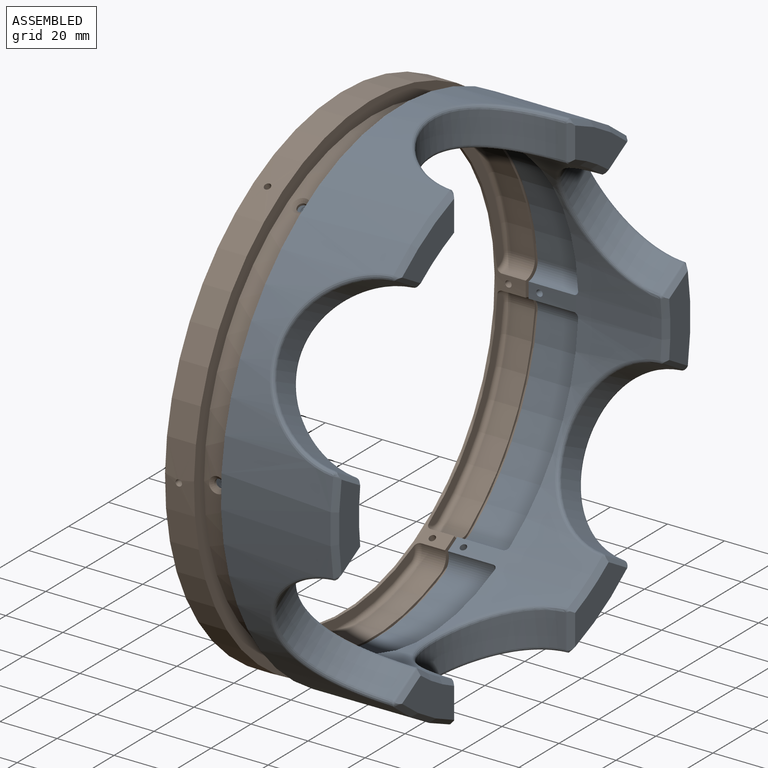
[diagram: assembled view]
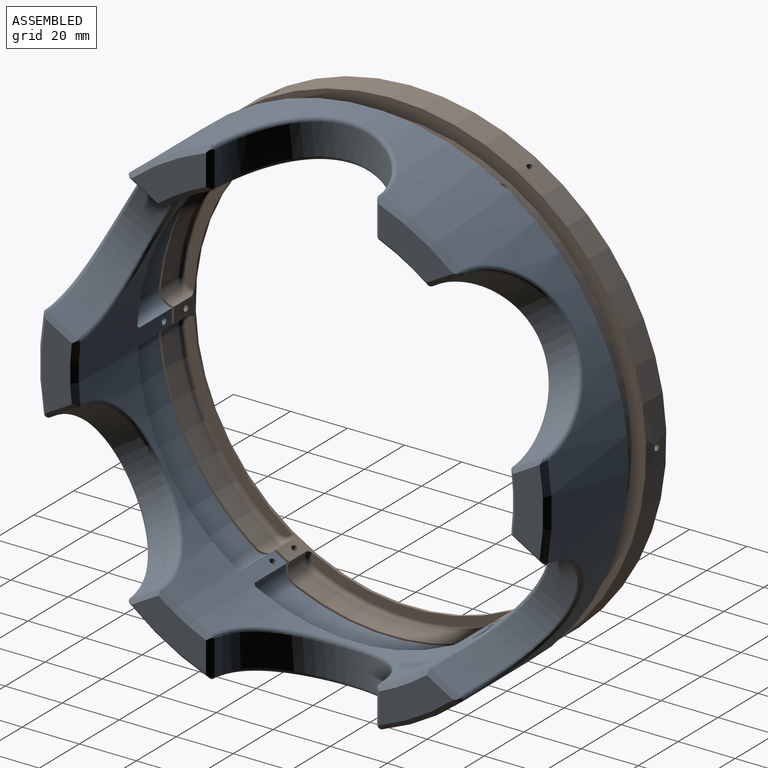
[diagram: assembled view, second angle]
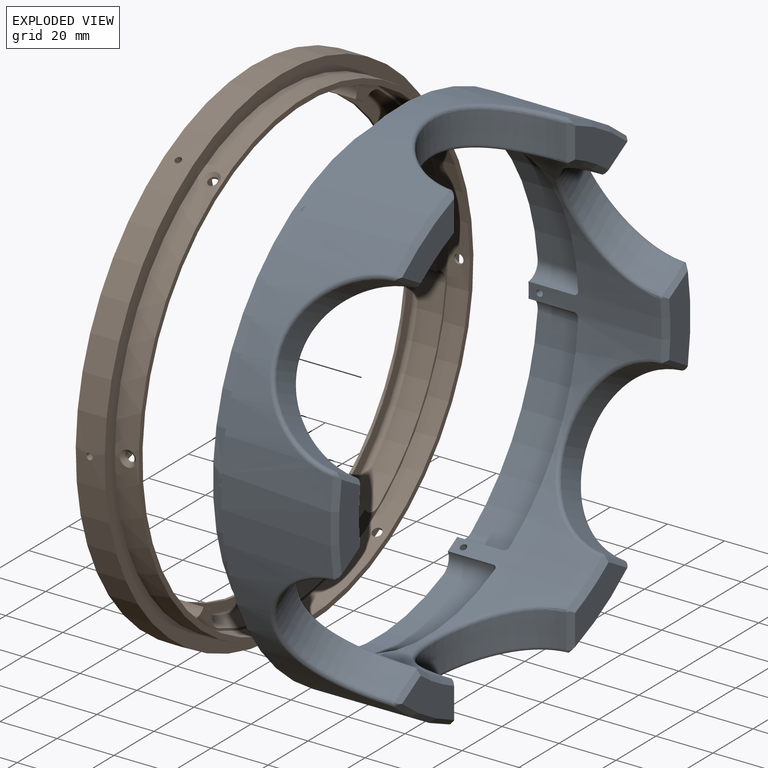
[diagram: exploded view]
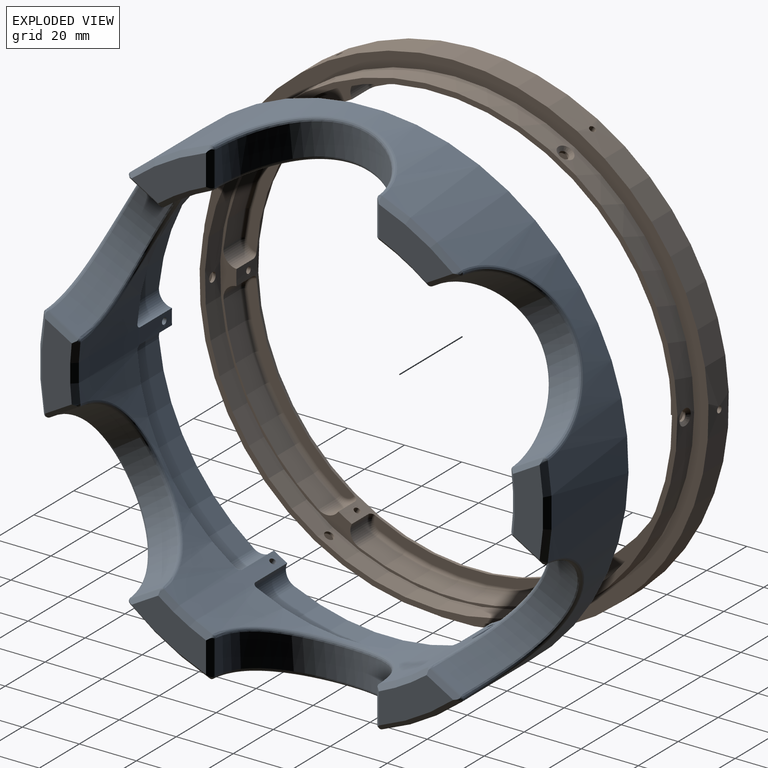
[diagram: exploded view, second angle]
ASSEMBLY  parts=2 mates=3
PART A: 169 faces, bbox 52x182.6x180.4 mm
  f0: plane 30.15x10.64mm, normal (1,0,0), area 249.5mm2, adj f1,f166,f167,f168
  f1: plane 10.94x7.13mm, normal (0.73,0.34,0.59), area 23.1mm2, adj f0,f2,f164,f165,f166,f168
  f2: bspline ~4.41x4.23mm, area 2.3mm2, adj f1,f3,f163,f164,f168
  f3: bspline ~52.45x31.19mm, area 194.8mm2, adj f2,f4,f161,f162,f163,f168
  f4: cone r=89.79mm half-angle=45deg, axis (-1,0,0), area 79.7mm2, adj f3,f5,f157,f158,f159,f160,f161,f162
  f5: plane 26.11x20.46mm, normal (1,0,0), area 249.5mm2, adj f4,f6,f157,f160
  f6: cone r=77.98mm half-angle=45deg, axis (1,0,0), area 50.1mm2, adj f5,f7,f154,f155,f157,f160
  f7: cylinder r=76.2mm len=152.4mm, axis (-1,0,0), area 14537.6mm2, adj f6,f8,f37,f38,f39,f40,f41,f42
  f8: cylinder r=1.52mm len=3.05mm, axis (0,1,0), area 0mm2, adj f7,f9
  f9: plane 3.05x3.05mm, normal (0,-1,0), area 3.3mm2, adj f8,f10,f37
  f10: cylinder r=1.13mm len=5.56mm, axis (0,-1,0), area 39.5mm2, adj f9,f11
  f11: plane 3.05x3.05mm, normal (0,1,0), area 3.3mm2, adj f10,f12
  f12: cylinder r=1.52mm len=3.05mm, axis (0,1,0), area 1.1mm2, adj f11,f13
  f13: cylinder r=81.89mm len=163.78mm, axis (-1,0,0), area 3904.2mm2, adj f12,f14,f18,f22,f26,f30,f34,f141
  f14: cylinder r=1.52mm len=3.05mm, axis (0,-1,0), area 1.1mm2, adj f13,f15
  f15: plane 3.05x3.05mm, normal (0,-1,0), area 3.3mm2, adj f14,f16
  f16: cylinder r=1.13mm len=5.56mm, axis (0,1,0), area 39.5mm2, adj f15,f17
  f17: plane 3.05x3.05mm, normal (0,1,0), area 3.3mm2, adj f16,f42,f43
  f18: cylinder r=1.52mm len=3.05mm, axis (0,-0.5,0.87), area 1.1mm2, adj f13,f19
  f19: plane 3.05x2.64mm, normal (0,-0.5,0.87), area 3.3mm2, adj f18,f20
  f20: cylinder r=1.13mm len=5.94mm, axis (0,0.5,-0.87), area 39.5mm2, adj f19,f21
  f21: plane 3.87x3.46mm, normal (0,0.5,-0.87), area 3.3mm2, adj f20,f40,f41
  f22: cylinder r=1.52mm len=3.05mm, axis (0,0.5,0.87), area 1.1mm2, adj f13,f23
  f23: plane 3.05x2.64mm, normal (0,0.5,0.87), area 3.3mm2, adj f22,f24
  f24: cylinder r=1.13mm len=5.94mm, axis (0,-0.5,-0.87), area 39.5mm2, adj f23,f25
  f25: plane 3.05x2.64mm, normal (0,-0.5,-0.87), area 3.3mm2, adj f24,f38,f39
  f26: cylinder r=1.52mm len=3.05mm, axis (0,0.5,-0.87), area 1.1mm2, adj f13,f27
  f27: plane 3.05x2.64mm, normal (0,0.5,-0.87), area 3.3mm2, adj f26,f28
  f28: cylinder r=1.13mm len=5.94mm, axis (0,-0.5,0.87), area 39.5mm2, adj f27,f29
  f29: plane 3.87x3.46mm, normal (0,-0.5,0.87), area 3.3mm2, adj f28,f46,f47
  f30: cylinder r=1.52mm len=3.05mm, axis (0,-0.5,-0.87), area 1.1mm2, adj f13,f31
  f31: plane 3.05x2.64mm, normal (0,-0.5,-0.87), area 3.3mm2, adj f30,f32
  f32: cylinder r=1.13mm len=5.94mm, axis (0,0.5,0.87), area 39.5mm2, adj f31,f33
  f33: plane 3.05x2.64mm, normal (0,0.5,0.87), area 3.3mm2, adj f32,f44,f45
  f34: plane 167.64x167.64mm, normal (-1,0,0), area 1005mm2, adj f13,f35
  f35: cylinder r=83.82mm len=167.64mm, axis (-1,0,0), area 334.4mm2, adj f34,f36
  f36: plane 179.58x179.58mm, normal (-1,0,0), area 3255.5mm2, adj f35,f162
  f37: cylinder r=1.52mm len=3.05mm, axis (0,1,0), area 0mm2, adj f7,f9
  f38: cylinder r=1.52mm len=3.05mm, axis (0,0.5,0.87), area 0mm2, adj f7,f25
  f39: cylinder r=1.52mm len=3.05mm, axis (0,0.5,0.87), area 0mm2, adj f7,f25
  f40: cylinder r=1.52mm len=3.05mm, axis (0,-0.5,0.87), area 0mm2, adj f7,f21
  f41: cylinder r=1.52mm len=3.05mm, axis (0,-0.5,0.87), area 0mm2, adj f7,f21
  f42: cylinder r=1.52mm len=3.05mm, axis (0,-1,0), area 0mm2, adj f7,f17
  f43: cylinder r=1.52mm len=3.05mm, axis (0,-1,0), area 0mm2, adj f7,f17
  f44: cylinder r=1.52mm len=3.05mm, axis (0,-0.5,-0.87), area 0mm2, adj f7,f33
  f45: cylinder r=1.52mm len=3.05mm, axis (0,-0.5,-0.87), area 0mm2, adj f7,f33
  f46: cylinder r=1.52mm len=3.05mm, axis (0,0.5,-0.87), area 0mm2, adj f7,f29
  f47: cylinder r=1.52mm len=3.05mm, axis (0,0.5,-0.87), area 0mm2, adj f7,f29
  f48: cone r=77.98mm half-angle=45deg, axis (1,0,0), area 50.1mm2, adj f7,f49,f91,f92,f93,f153
  f49: plane 10.95x6.92mm, normal (0.73,0.34,0.59), area 23.1mm2, adj f48,f50,f73,f90,f92,f93
  f50: bspline ~4.23x3.92mm, area 2.3mm2, adj f49,f51,f72,f73,f90
  f51: cylinder r=28.57mm len=57.85mm, axis (0,0.87,-0.5), area 975.4mm2, adj f50,f52,f71,f72,f90,f93,f94,f95
  f52: bspline ~4.41x4.23mm, area 2.3mm2, adj f51,f53,f70,f71,f72
  f53: plane 10.94x7.13mm, normal (0.73,-0.34,-0.59), area 23.1mm2, adj f52,f54,f70,f71,f95,f96
  f54: plane 30.15x10.64mm, normal (1,0,0), area 249.5mm2, adj f53,f55,f70,f96
  f55: plane 10.94x7.13mm, normal (0.73,-0.34,0.59), area 23.1mm2, adj f54,f56,f69,f70,f96,f97
  f56: bspline ~5.65x5.54mm, area 2.3mm2, adj f55,f57,f68,f69,f70
  f57: cylinder r=28.57mm len=57.85mm, axis (0,-0.87,-0.5), area 975.5mm2, adj f56,f58,f67,f68,f69,f97,f98,f99
  f58: bspline ~4.23x3.92mm, area 2.3mm2, adj f57,f59,f66,f67,f68
  f59: plane 10.95x6.92mm, normal (0.73,0.34,-0.59), area 23.1mm2, adj f58,f60,f66,f67,f99,f100
  f60: plane 26.11x20.46mm, normal (1,0,0), area 249.5mm2, adj f59,f61,f66,f100
  f61: plane 12.48x1.42mm, normal (0.73,-0.69,0), area 23.1mm2, adj f60,f62,f65,f66,f100,f101
  f62: bspline ~5.86x5.54mm, area 2.3mm2, adj f61,f63,f65,f66,f158
  f63: cylinder r=28.57mm len=56.99mm, axis (0,0,1), area 975.4mm2, adj f62,f64,f65,f101,f145,f154,f158,f159
  f64: cylinder r=1.27mm len=12.42mm, axis (0,0,1), area 11.3mm2, adj f63,f154,f159,f160
  f65: cylinder r=1.27mm len=12.42mm, axis (0,0,1), area 11.3mm2, adj f61,f62,f63,f101
  f66: cone r=89.79mm half-angle=45deg, axis (-1,0,0), area 79.7mm2, adj f58,f59,f60,f61,f62,f68,f158,f162
  f67: cylinder r=1.27mm len=10.95mm, axis (0,-0.87,-0.5), area 11.3mm2, adj f57,f58,f59,f99
  f68: bspline ~52.44x31.19mm, area 194.8mm2, adj f56,f57,f58,f66,f70,f162
  f69: cylinder r=1.27mm len=10.95mm, axis (0,-0.87,-0.5), area 11.3mm2, adj f55,f56,f57,f97
  f70: cone r=89.79mm half-angle=45deg, axis (-1,0,0), area 79.7mm2, adj f52,f53,f54,f55,f56,f68,f72,f162
  f71: cylinder r=1.27mm len=10.95mm, axis (0,0.87,-0.5), area 11.3mm2, adj f51,f52,f53,f95
  f72: bspline ~52.45x31.19mm, area 194.8mm2, adj f50,f51,f52,f70,f73,f162
  f73: cone r=89.79mm half-angle=45deg, axis (-1,0,0), area 79.7mm2, adj f49,f50,f72,f74,f89,f91,f92,f162
  f74: bspline ~60.56x31.19mm, area 194.8mm2, adj f73,f75,f86,f87,f89,f162
  f75: cone r=89.79mm half-angle=45deg, axis (-1,0,0), area 79.7mm2, adj f74,f76,f81,f82,f83,f84,f86,f162
  f76: bspline ~52.44x31.19mm, area 194.8mm2, adj f75,f77,f79,f81,f162,f168
  f77: bspline ~5.65x5.54mm, area 2.3mm2, adj f76,f78,f79,f167,f168
  f78: cylinder r=1.27mm len=10.95mm, axis (0,-0.87,-0.5), area 11.3mm2, adj f77,f79,f147,f167
  f79: cylinder r=28.57mm len=57.85mm, axis (0,-0.87,-0.5), area 975.4mm2, adj f76,f77,f78,f80,f81,f147,f148,f149
  f80: cylinder r=1.27mm len=10.95mm, axis (0,-0.87,-0.5), area 11.3mm2, adj f79,f81,f82,f149
  f81: bspline ~4.23x3.92mm, area 2.3mm2, adj f75,f76,f79,f80,f82
  f82: plane 10.95x6.92mm, normal (0.73,-0.34,0.59), area 23.1mm2, adj f75,f80,f81,f83,f149,f150
  f83: plane 26.11x20.46mm, normal (1,0,0), area 249.5mm2, adj f75,f82,f84,f150
  f84: plane 12.48x1.42mm, normal (0.73,0.69,0), area 23.1mm2, adj f75,f83,f85,f86,f150,f151
  f85: cylinder r=1.27mm len=12.42mm, axis (0,0,1), area 11.3mm2, adj f84,f86,f87,f151
  f86: bspline ~5.86x5.54mm, area 2.3mm2, adj f74,f75,f84,f85,f87
  f87: cylinder r=28.57mm len=56.99mm, axis (0,0,1), area 975.5mm2, adj f74,f85,f86,f88,f89,f151,f152,f153
  f88: cylinder r=1.27mm len=12.42mm, axis (0,0,1), area 11.3mm2, adj f87,f89,f91,f153
  f89: bspline ~4.44x4.23mm, area 2.3mm2, adj f73,f74,f87,f88,f91
  f90: cylinder r=1.27mm len=10.95mm, axis (0,0.87,-0.5), area 11.3mm2, adj f49,f50,f51,f93
  f91: plane 12.48x1.42mm, normal (0.73,-0.69,0), area 23.1mm2, adj f48,f73,f88,f89,f92,f153
  f92: plane 26.11x20.46mm, normal (1,0,0), area 249.5mm2, adj f48,f49,f73,f91
  f93: bspline ~6.65x6.3mm, area 1.1mm2, adj f7,f48,f49,f51,f90,f94
  f94: bspline ~50.86x29.99mm, area 154.3mm2, adj f7,f51,f93,f95
  f95: bspline ~6.65x6.16mm, area 1.1mm2, adj f7,f51,f53,f71,f94,f96
  f96: cone r=77.98mm half-angle=45deg, axis (1,0,0), area 50.1mm2, adj f7,f53,f54,f55,f95,f97
  f97: bspline ~6.65x6.16mm, area 1.1mm2, adj f7,f55,f57,f69,f96,f98
  f98: bspline ~50.86x29.99mm, area 154.3mm2, adj f7,f57,f97,f99
  f99: bspline ~6.65x6.3mm, area 1.1mm2, adj f7,f57,f59,f67,f98,f100
  f100: cone r=77.98mm half-angle=45deg, axis (1,0,0), area 50.1mm2, adj f7,f59,f60,f61,f99,f101
  f101: bspline ~7.09x6.65mm, area 1.1mm2, adj f7,f61,f63,f65,f100,f145
  f102: torus R=3.34mm, axis (-1,0,0), area 17.3mm2, adj f7,f103,f105,f144
  f103: torus R=79.54mm, axis (-1,0,0), area 170mm2, adj f102,f104,f143,f144
  f104: cylinder r=81.13mm len=66.64mm, axis (-1,0,0), area 1089.3mm2, adj f103,f105,f141,f142
  f105: cylinder r=4.93mm len=15.86mm, axis (-1,0,0), area 125.3mm2, adj f7,f102,f104,f141
  f106: cylinder r=4.93mm len=15.86mm, axis (-1,0,0), area 125.3mm2, adj f7,f107,f109,f141
  f107: cylinder r=81.13mm len=57.71mm, axis (-1,0,0), area 1089.3mm2, adj f106,f108,f112,f141
  f108: torus R=79.54mm, axis (-1,0,0), area 170mm2, adj f107,f109,f110,f111
  f109: torus R=3.34mm, axis (-1,0,0), area 17.3mm2, adj f7,f106,f108,f110
  f110: plane 60.88x37.39mm, normal (-1,0,0), area 237.9mm2, adj f7,f108,f109,f111
  f111: torus R=3.34mm, axis (-1,0,0), area 17.3mm2, adj f7,f108,f110,f112
  f112: cylinder r=4.93mm len=15.86mm, axis (-1,0,0), area 125.3mm2, adj f7,f107,f111,f141
  f113: cylinder r=4.93mm len=15.86mm, axis (-1,0,0), area 125.3mm2, adj f7,f114,f116,f141
  f114: cylinder r=81.13mm len=57.71mm, axis (-1,0,0), area 1089.3mm2, adj f113,f115,f119,f141
  f115: torus R=79.54mm, axis (-1,0,0), area 170mm2, adj f114,f116,f117,f118
  f116: torus R=3.34mm, axis (-1,0,0), area 17.3mm2, adj f7,f113,f115,f117
  f117: plane 60.88x37.39mm, normal (-1,0,0), area 237.9mm2, adj f7,f115,f116,f118
  f118: torus R=3.34mm, axis (-1,0,0), area 17.3mm2, adj f7,f115,f117,f119
  f119: cylinder r=4.93mm len=15.86mm, axis (-1,0,0), area 125.3mm2, adj f7,f114,f118,f141
  f120: cylinder r=4.93mm len=15.86mm, axis (-1,0,0), area 125.3mm2, adj f7,f121,f123,f141
  f121: cylinder r=81.13mm len=66.64mm, axis (-1,0,0), area 1089.3mm2, adj f120,f122,f126,f141
  f122: torus R=79.54mm, axis (-1,0,0), area 170mm2, adj f121,f123,f124,f125
  f123: torus R=3.34mm, axis (-1,0,0), area 17.3mm2, adj f7,f120,f122,f124
  f124: plane 69.27x11.5mm, normal (-1,0,0), area 237.9mm2, adj f7,f122,f123,f125
  f125: torus R=3.34mm, axis (-1,0,0), area 17.3mm2, adj f7,f122,f124,f126
  f126: cylinder r=4.93mm len=15.86mm, axis (-1,0,0), area 125.3mm2, adj f7,f121,f125,f141
  f127: cylinder r=4.93mm len=15.86mm, axis (-1,0,0), area 125.3mm2, adj f7,f128,f130,f141
  f128: cylinder r=81.13mm len=57.71mm, axis (-1,0,0), area 1089.3mm2, adj f127,f129,f133,f141
  f129: torus R=79.54mm, axis (-1,0,0), area 170mm2, adj f128,f130,f131,f132
  f130: torus R=3.34mm, axis (-1,0,0), area 17.3mm2, adj f7,f127,f129,f131
  f131: plane 60.88x37.39mm, normal (-1,0,0), area 237.9mm2, adj f7,f129,f130,f132
  f132: torus R=3.34mm, axis (-1,0,0), area 17.3mm2, adj f7,f129,f131,f133
  f133: cylinder r=4.93mm len=15.86mm, axis (-1,0,0), area 125.3mm2, adj f7,f128,f132,f141
  f134: cylinder r=4.93mm len=15.86mm, axis (-1,0,0), area 125.3mm2, adj f7,f135,f137,f141
  f135: cylinder r=81.13mm len=57.71mm, axis (-1,0,0), area 1089.3mm2, adj f134,f136,f140,f141
  f136: torus R=79.54mm, axis (-1,0,0), area 170mm2, adj f135,f137,f138,f139
  f137: torus R=3.34mm, axis (-1,0,0), area 17.3mm2, adj f7,f134,f136,f138
  f138: plane 60.88x37.39mm, normal (-1,0,0), area 237.9mm2, adj f7,f136,f137,f139
  f139: torus R=3.34mm, axis (-1,0,0), area 17.3mm2, adj f7,f136,f138,f140
  f140: cylinder r=4.93mm len=15.86mm, axis (-1,0,0), area 125.3mm2, adj f7,f135,f139,f141
  f141: plane 163.78x163.78mm, normal (-1,0,0), area 625.1mm2, adj f7,f13,f104,f105,f106,f107,f112,f113
  f142: cylinder r=4.93mm len=15.86mm, axis (-1,0,0), area 125.3mm2, adj f7,f104,f141,f143
  f143: torus R=3.34mm, axis (-1,0,0), area 17.3mm2, adj f7,f103,f142,f144
  f144: plane 69.27x11.5mm, normal (-1,0,0), area 237.9mm2, adj f7,f102,f103,f143
  f145: bspline ~58.73x29.77mm, area 154.3mm2, adj f7,f63,f101,f154
  f146: bspline ~50.86x29.99mm, area 154.3mm2, adj f7,f155,f163,f165
  f147: bspline ~6.65x6.16mm, area 1.1mm2, adj f7,f78,f79,f148,f166,f167
  f148: bspline ~50.86x29.99mm, area 154.3mm2, adj f7,f79,f147,f149
  f149: bspline ~6.65x6.3mm, area 1.1mm2, adj f7,f79,f80,f82,f148,f150
  f150: cone r=77.98mm half-angle=45deg, axis (1,0,0), area 50.1mm2, adj f7,f82,f83,f84,f149,f151
  f151: bspline ~7.09x6.65mm, area 1.1mm2, adj f7,f84,f85,f87,f150,f152
  f152: bspline ~58.73x29.77mm, area 154.3mm2, adj f7,f87,f151,f153
  f153: bspline ~7.09x6.65mm, area 1.1mm2, adj f7,f48,f87,f88,f91,f152
  f154: bspline ~7.09x6.65mm, area 1.1mm2, adj f6,f7,f63,f64,f145,f160
  f155: bspline ~6.65x6.3mm, area 1.1mm2, adj f6,f7,f146,f156,f157,f163
  f156: cylinder r=1.27mm len=10.95mm, axis (0,0.87,-0.5), area 11.3mm2, adj f155,f157,f161,f163
  f157: plane 10.95x6.92mm, normal (0.73,-0.34,-0.59), area 23.1mm2, adj f4,f5,f6,f155,f156,f161
  f158: bspline ~60.56x31.19mm, area 194.8mm2, adj f4,f62,f63,f66,f159,f162
  f159: bspline ~4.44x4.23mm, area 2.3mm2, adj f4,f63,f64,f158,f160
  f160: plane 12.48x1.42mm, normal (0.73,0.69,0), area 23.1mm2, adj f4,f5,f6,f64,f154,f159
  f161: bspline ~4.23x3.92mm, area 2.3mm2, adj f3,f4,f156,f157,f163
  f162: cylinder r=89.79mm len=179.58mm, axis (-1,0,0), area 13668.3mm2, adj f3,f4,f36,f66,f68,f70,f72,f73
  f163: cylinder r=28.57mm len=57.85mm, axis (0,0.87,-0.5), area 975.5mm2, adj f2,f3,f146,f155,f156,f161,f164,f165
  f164: cylinder r=1.27mm len=10.95mm, axis (0,0.87,-0.5), area 11.3mm2, adj f1,f2,f163,f165
  f165: bspline ~6.65x6.16mm, area 1.1mm2, adj f1,f7,f146,f163,f164,f166
  f166: cone r=77.98mm half-angle=45deg, axis (1,0,0), area 50.1mm2, adj f0,f1,f7,f147,f165,f167
  f167: plane 10.94x7.13mm, normal (0.73,0.34,-0.59), area 23.1mm2, adj f0,f77,f78,f147,f166,f168
  f168: cone r=89.79mm half-angle=45deg, axis (-1,0,0), area 79.7mm2, adj f0,f1,f2,f3,f76,f77,f162,f167
PART B: 86 faces, bbox 19x178.2x178.2 mm
  f0: cylinder r=88.9mm len=177.8mm, axis (-1,0,0), area 5650.6mm2, adj f1,f79,f80,f81,f82,f83,f84,f85
  f1: cylinder r=1.13mm len=12.12mm, axis (0,0.87,0.5), area 90.1mm2, adj f0,f2
  f2: plane 3.47x3.06mm, normal (0,0.87,0.5), area 3.3mm2, adj f1,f3,f78
  f3: cylinder r=1.52mm len=3.05mm, axis (0,0.87,0.5), area 0mm2, adj f2,f4
  f4: cylinder r=76.2mm len=152.4mm, axis (-1,0,0), area 772.4mm2, adj f3,f5,f7,f8,f10,f11,f13,f14
  f5: cylinder r=1.52mm len=3.05mm, axis (0,-0.87,0.5), area 0mm2, adj f4,f6
  f6: plane 3.47x3.06mm, normal (0,-0.87,0.5), area 3.3mm2, adj f5,f7,f82
  f7: cylinder r=1.52mm len=3.05mm, axis (0,-0.87,0.5), area 0mm2, adj f4,f6
  f8: cylinder r=1.52mm len=3.05mm, axis (0,-0.87,-0.5), area 0mm2, adj f4,f9
  f9: plane 3.47x3.06mm, normal (0,-0.87,-0.5), area 3.3mm2, adj f8,f10,f81
  f10: cylinder r=1.52mm len=3.05mm, axis (0,-0.87,-0.5), area 0mm2, adj f4,f9
  f11: cylinder r=1.52mm len=3.05mm, axis (0,0,-1), area 0mm2, adj f4,f12
  f12: plane 3.47x3.47mm, normal (0,0,-1), area 3.3mm2, adj f11,f13,f80
  f13: cylinder r=1.52mm len=3.05mm, axis (0,0,-1), area 0mm2, adj f4,f12
  f14: cylinder r=1.52mm len=3.05mm, axis (0,0.87,-0.5), area 0mm2, adj f4,f15
  f15: plane 3.47x3.06mm, normal (0,0.87,-0.5), area 3.3mm2, adj f14,f16,f79
  f16: cylinder r=1.52mm len=3.05mm, axis (0,0.87,-0.5), area 0mm2, adj f4,f15
  f17: cylinder r=1.52mm len=3.05mm, axis (0,0,1), area 0mm2, adj f4,f18
  f18: plane 3.05x3.05mm, normal (0,0,1), area 3.3mm2, adj f17,f19,f84
  f19: cylinder r=1.52mm len=3.05mm, axis (0,0,1), area 0mm2, adj f4,f18
  f20: cylinder r=4.93mm len=8.32mm, axis (-1,0,0), area 65.7mm2, adj f4,f21,f23,f62
  f21: cylinder r=81.13mm len=57.71mm, axis (-1,0,0), area 571.3mm2, adj f20,f22,f26,f62
  f22: torus R=79.54mm, axis (-1,0,0), area 170mm2, adj f21,f23,f24,f25
  f23: torus R=3.34mm, axis (-1,0,0), area 17.3mm2, adj f4,f20,f22,f24
  f24: plane 60.88x37.39mm, normal (-1,0,0), area 237.9mm2, adj f4,f22,f23,f25
  f25: torus R=3.34mm, axis (-1,0,0), area 17.3mm2, adj f4,f22,f24,f26
  f26: cylinder r=4.93mm len=8.32mm, axis (-1,0,0), area 65.7mm2, adj f4,f21,f25,f62
  f27: cylinder r=4.93mm len=8.32mm, axis (-1,0,0), area 65.7mm2, adj f4,f28,f30,f62
  f28: cylinder r=81.13mm len=57.71mm, axis (-1,0,0), area 571.3mm2, adj f27,f29,f33,f62
  f29: torus R=79.54mm, axis (-1,0,0), area 170mm2, adj f28,f30,f31,f32
  f30: torus R=3.34mm, axis (-1,0,0), area 17.3mm2, adj f4,f27,f29,f31
  f31: plane 60.88x37.39mm, normal (-1,0,0), area 237.9mm2, adj f4,f29,f30,f32
  f32: torus R=3.34mm, axis (-1,0,0), area 17.3mm2, adj f4,f29,f31,f33
  f33: cylinder r=4.93mm len=8.32mm, axis (-1,0,0), area 65.7mm2, adj f4,f28,f32,f62
  f34: cylinder r=4.93mm len=8.32mm, axis (-1,0,0), area 65.7mm2, adj f4,f35,f37,f62
  f35: cylinder r=81.13mm len=66.64mm, axis (-1,0,0), area 571.3mm2, adj f34,f36,f40,f62
  f36: torus R=79.54mm, axis (-1,0,0), area 170mm2, adj f35,f37,f38,f39
  f37: torus R=3.34mm, axis (-1,0,0), area 17.3mm2, adj f4,f34,f36,f38
  f38: plane 69.27x11.5mm, normal (-1,0,0), area 237.9mm2, adj f4,f36,f37,f39
  f39: torus R=3.34mm, axis (-1,0,0), area 17.3mm2, adj f4,f36,f38,f40
  f40: cylinder r=4.93mm len=8.32mm, axis (-1,0,0), area 65.7mm2, adj f4,f35,f39,f62
  f41: cylinder r=4.93mm len=8.32mm, axis (-1,0,0), area 65.7mm2, adj f4,f42,f44,f62
  f42: cylinder r=81.13mm len=57.71mm, axis (-1,0,0), area 571.3mm2, adj f41,f43,f47,f62
  f43: torus R=79.54mm, axis (-1,0,0), area 170mm2, adj f42,f44,f45,f46
  f44: torus R=3.34mm, axis (-1,0,0), area 17.3mm2, adj f4,f41,f43,f45
  f45: plane 60.88x37.39mm, normal (-1,0,0), area 237.9mm2, adj f4,f43,f44,f46
  f46: torus R=3.34mm, axis (-1,0,0), area 17.3mm2, adj f4,f43,f45,f47
  f47: cylinder r=4.93mm len=8.32mm, axis (-1,0,0), area 65.7mm2, adj f4,f42,f46,f62
  f48: cylinder r=4.93mm len=8.32mm, axis (-1,0,0), area 65.7mm2, adj f4,f49,f51,f62
  f49: cylinder r=81.13mm len=57.71mm, axis (-1,0,0), area 571.3mm2, adj f48,f50,f54,f62
  f50: torus R=79.54mm, axis (-1,0,0), area 170mm2, adj f49,f51,f52,f53
  f51: torus R=3.34mm, axis (-1,0,0), area 17.3mm2, adj f4,f48,f50,f52
  f52: plane 60.88x37.39mm, normal (-1,0,0), area 237.9mm2, adj f4,f50,f51,f53
  f53: torus R=3.34mm, axis (-1,0,0), area 17.3mm2, adj f4,f50,f52,f54
  f54: cylinder r=4.93mm len=8.32mm, axis (-1,0,0), area 65.7mm2, adj f4,f49,f53,f62
  f55: cylinder r=4.93mm len=8.32mm, axis (-1,0,0), area 65.7mm2, adj f4,f56,f58,f62
  f56: cylinder r=81.13mm len=66.64mm, axis (-1,0,0), area 571.3mm2, adj f55,f57,f61,f62
  f57: torus R=79.54mm, axis (-1,0,0), area 170mm2, adj f56,f58,f59,f60
  f58: torus R=3.34mm, axis (-1,0,0), area 17.3mm2, adj f4,f55,f57,f59
  f59: plane 69.27x11.5mm, normal (-1,0,0), area 237.9mm2, adj f4,f57,f58,f60
  f60: torus R=3.34mm, axis (-1,0,0), area 17.3mm2, adj f4,f57,f59,f61
  f61: cylinder r=4.93mm len=8.32mm, axis (-1,0,0), area 65.7mm2, adj f4,f56,f60,f62
  f62: plane 163.88x163.88mm, normal (-1,0,0), area 651.2mm2, adj f4,f20,f21,f26,f27,f28,f33,f34
  f63: cylinder r=81.94mm len=163.88mm, axis (-1,0,0), area 3873.9mm2, adj f62,f64,f72,f73,f74,f75,f76,f77
  f64: cylinder r=1.63mm len=3.26mm, axis (0,0,-1), area 8.9mm2, adj f63,f65
  f65: cone r=2.86mm half-angle=50deg, axis (0,0,-1), area 21.9mm2, adj f64,f66
  f66: cylinder r=83.82mm len=167.64mm, axis (-1,0,0), area 4263.1mm2, adj f65,f67,f68,f69,f70,f71,f76,f85
  f67: cone r=2.86mm half-angle=50deg, axis (0,-0.87,-0.5), area 21.9mm2, adj f66,f72
  f68: cone r=2.86mm half-angle=50deg, axis (0,-0.87,0.5), area 21.9mm2, adj f66,f73
  f69: cone r=2.86mm half-angle=50deg, axis (0,0.87,0.5), area 21.9mm2, adj f66,f74
  f70: cone r=2.86mm half-angle=50deg, axis (0,0.87,-0.5), area 21.9mm2, adj f66,f75
  f71: cone r=2.86mm half-angle=50deg, axis (0,0,1), area 21.9mm2, adj f66,f77
  f72: cylinder r=1.63mm len=3.26mm, axis (0,-0.87,-0.5), area 8.9mm2, adj f63,f67
  f73: cylinder r=1.63mm len=3.26mm, axis (0,-0.87,0.5), area 8.9mm2, adj f63,f68
  f74: cylinder r=1.63mm len=3.26mm, axis (0,0.87,0.5), area 8.9mm2, adj f63,f69
  f75: cylinder r=1.63mm len=3.26mm, axis (0,0.87,-0.5), area 8.9mm2, adj f63,f70
  f76: plane 167.64x167.64mm, normal (-1,0,0), area 978.8mm2, adj f63,f66
  f77: cylinder r=1.63mm len=3.26mm, axis (0,0,1), area 8.8mm2, adj f63,f71
  f78: cylinder r=1.52mm len=3.05mm, axis (0,0.87,0.5), area 0mm2, adj f2,f4
  f79: cylinder r=1.13mm len=12.12mm, axis (0,0.87,-0.5), area 90.1mm2, adj f0,f15
  f80: cylinder r=1.13mm len=12.7mm, axis (0,0,-1), area 90.2mm2, adj f0,f12
  f81: cylinder r=1.13mm len=12.12mm, axis (0,-0.87,-0.5), area 90.1mm2, adj f0,f9
  f82: cylinder r=1.13mm len=12.12mm, axis (0,-0.87,0.5), area 90.1mm2, adj f0,f6
  f83: plane 177.8x177.8mm, normal (1,0,0), area 6587.2mm2, adj f0,f4
  f84: cylinder r=1.13mm len=12.7mm, axis (0,0,1), area 90.2mm2, adj f0,f18
  f85: plane 177.8x177.8mm, normal (-1,0,0), area 2756.5mm2, adj f0,f66
PLACE A t=(0,-17.19,-19.26)mm fixed
PLACE B rot(axis=(0,-0.97,-0.26),180deg) t=(-29.63,-131.49,46.73)mm
MATE planar B.f62 <-> A.f4  axis (1,0,0) through (-29.63,-129.11,48.04)mm
MATE cylindrical B.f55 <-> A.f111  axis (1,0,0) through (-29.63,-17.58,-11.63)mm
MATE cylindrical B.f0 <-> A.f6  axis (1,0,0) through (-25.82,-93.39,-19.26)mm
